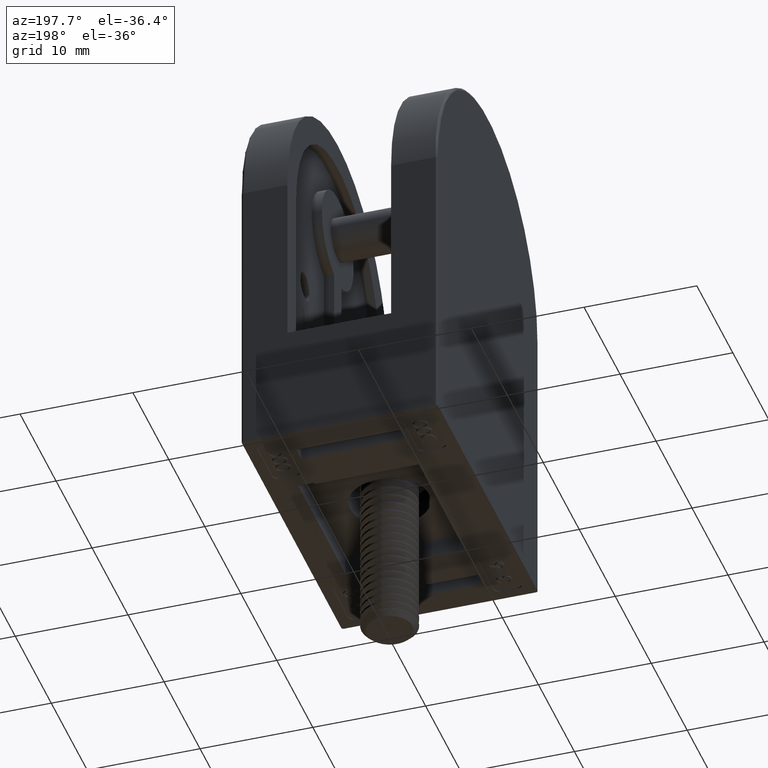
[diagram: clean part render]
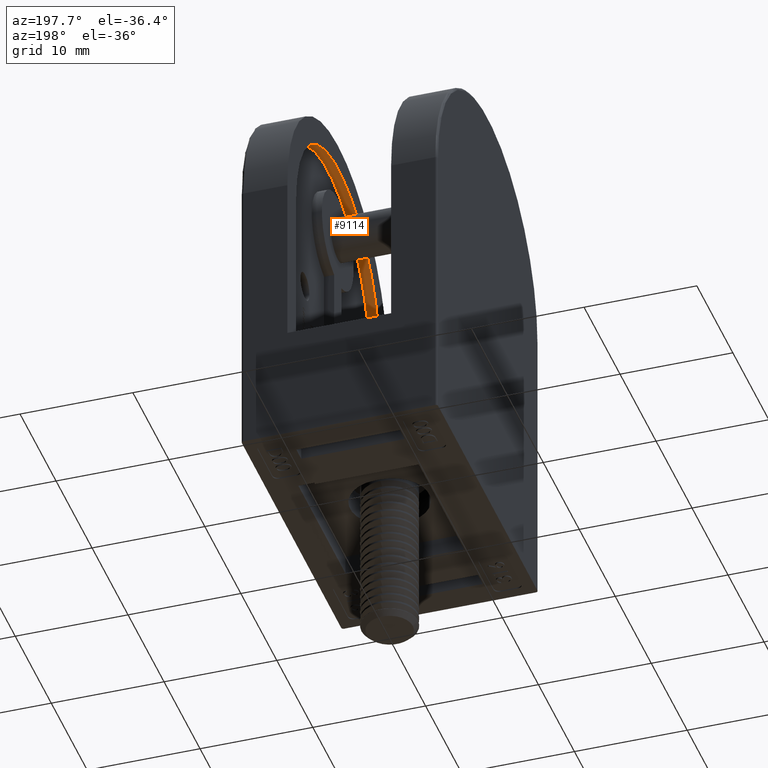
[diagram: same view with one face highlighted and labeled with its STEP entity id]
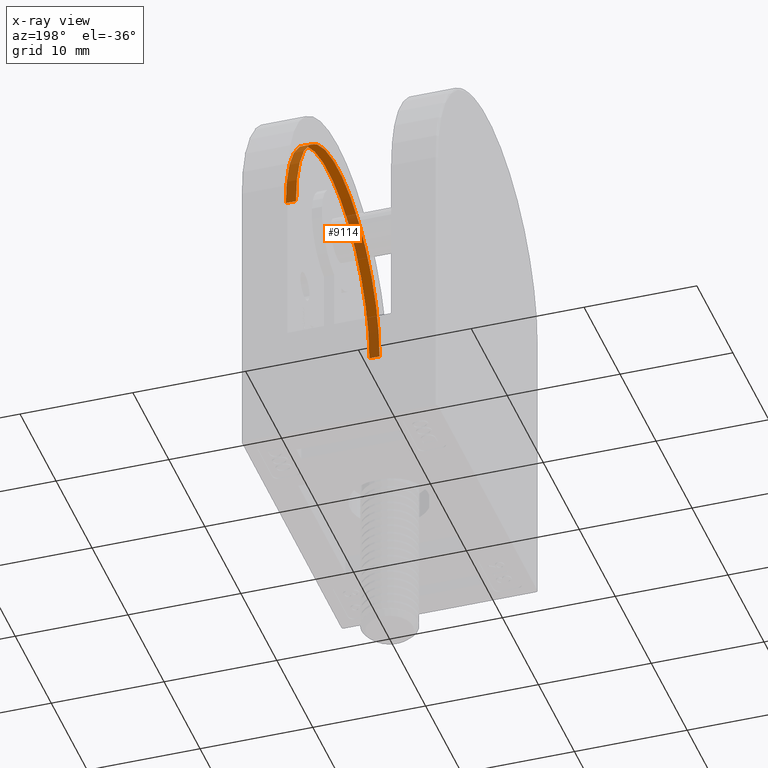
[diagram: x-ray of the same camera — body ghosted, the highlighted face saturated]
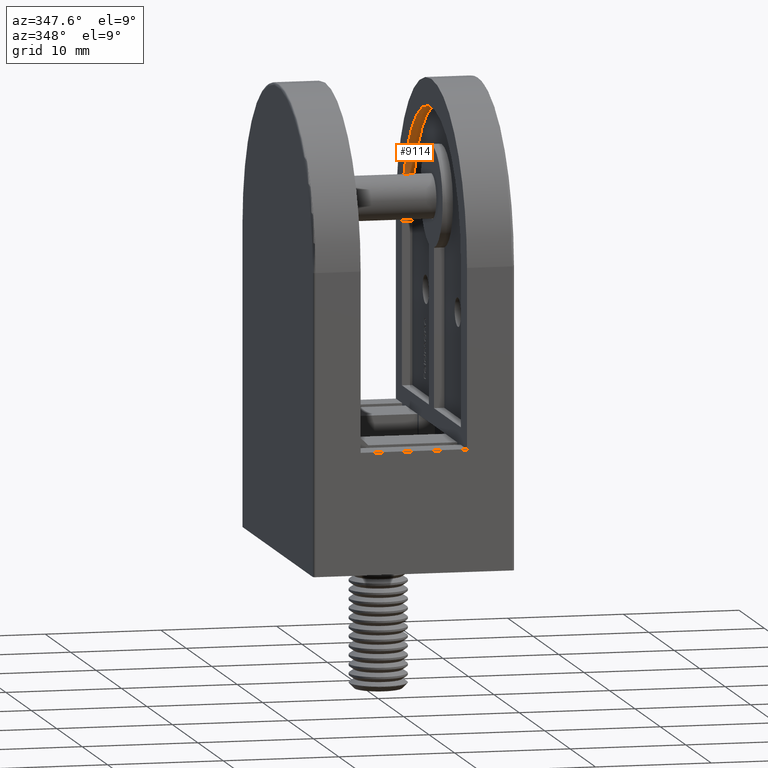
[diagram: same view with one face highlighted and labeled with its STEP entity id]
A machine part, auxiliary view. The second image highlights one B-rep face of the part: STEP entity #9114.
The next image is the same camera in x-ray: the body ghosted, the highlighted face saturated — about 31% of this face is hidden behind the body in this view.
A second angle (auxiliary view) of the same face is appended — the face is thin or edge-on in the first view.
In plain terms, the highlighted cylindrical surface (partial cylindrical patch) has radius 11.6 mm, axis along (-1, 0, 0).
Its self-contained STEP definition (entity closure, byte-faithful):
#1143 = AXIS2_PLACEMENT_3D ( 'NONE', #27488, #8342, #15457 ) ;
#1204 = VECTOR ( 'NONE', #3365, 1000.000000000000000 ) ;
#2016 = EDGE_LOOP ( 'NONE', ( #25953, #44683, #34201, #10985 ) ) ;
#2797 = CARTESIAN_POINT ( 'NONE',  ( 3.199999999999999700, -11.59999999999999800, 25.99999999999999600 ) ) ;
#3062 = VERTEX_POINT ( 'NONE', #2797 ) ;
#3365 = DIRECTION ( 'NONE',  ( 1.000000000000000000, -0.0000000000000000000, -0.0000000000000000000 ) ) ;
#5037 = CARTESIAN_POINT ( 'NONE',  ( 4.099999999999999600, 11.59999999999999800, 25.99999999999999600 ) ) ;
#5111 = CARTESIAN_POINT ( 'NONE',  ( 3.199999999999999700, -11.59999999999999800, 25.99999999999999600 ) ) ;
#8194 = DIRECTION ( 'NONE',  ( 1.000000000000000000, 0.0000000000000000000, 0.0000000000000000000 ) ) ;
#8342 = DIRECTION ( 'NONE',  ( 1.000000000000000000, 0.0000000000000000000, 0.0000000000000000000 ) ) ;
#9114 = ADVANCED_FACE ( 'NONE', ( #10311 ), #19462, .F. ) ;
#10311 = FACE_OUTER_BOUND ( 'NONE', #2016, .T. ) ;
#10985 = ORIENTED_EDGE ( 'NONE', *, *, #44662, .T. ) ;
#12828 = LINE ( 'NONE', #31254, #1204 ) ;
#14032 = CIRCLE ( 'NONE', #1143, 11.59999999999999800 ) ;
#15457 = DIRECTION ( 'NONE',  ( 0.0000000000000000000, 0.0000000000000000000, -1.000000000000000000 ) ) ;
#16247 = EDGE_CURVE ( 'NONE', #41070, #3062, #43034, .T. ) ;
#17555 = VECTOR ( 'NONE', #32821, 1000.000000000000000 ) ;
#19462 = CYLINDRICAL_SURFACE ( 'NONE', #49975, 11.59999999999999800 ) ;
#24059 = VERTEX_POINT ( 'NONE', #5037 ) ;
#25616 = EDGE_CURVE ( 'NONE', #3062, #28090, #50801, .T. ) ;
#25953 = ORIENTED_EDGE ( 'NONE', *, *, #32800, .T. ) ;
#26387 = AXIS2_PLACEMENT_3D ( 'NONE', #43369, #8194, #35599 ) ;
#26437 = DIRECTION ( 'NONE',  ( 1.000000000000000000, -0.0000000000000000000, -0.0000000000000000000 ) ) ;
#27488 = CARTESIAN_POINT ( 'NONE',  ( 4.099999999999999600, 0.0000000000000000000, 25.99999999999999600 ) ) ;
#28090 = VERTEX_POINT ( 'NONE', #38045 ) ;
#31254 = CARTESIAN_POINT ( 'NONE',  ( 3.199999999999999700, 11.59999999999999800, 25.99999999999999600 ) ) ;
#32800 = EDGE_CURVE ( 'NONE', #24059, #28090, #14032, .T. ) ;
#32821 = DIRECTION ( 'NONE',  ( 1.000000000000000000, -0.0000000000000000000, -0.0000000000000000000 ) ) ;
#34201 = ORIENTED_EDGE ( 'NONE', *, *, #16247, .F. ) ;
#35599 = DIRECTION ( 'NONE',  ( 0.0000000000000000000, 0.0000000000000000000, -1.000000000000000000 ) ) ;
#38045 = CARTESIAN_POINT ( 'NONE',  ( 4.099999999999999600, -11.59999999999999800, 25.99999999999999600 ) ) ;
#38286 = CARTESIAN_POINT ( 'NONE',  ( 3.199999999999999700, 0.0000000000000000000, 25.99999999999999600 ) ) ;
#41070 = VERTEX_POINT ( 'NONE', #45956 ) ;
#42275 = DIRECTION ( 'NONE',  ( 0.0000000000000000000, 0.0000000000000000000, -1.000000000000000000 ) ) ;
#43034 = CIRCLE ( 'NONE', #26387, 11.59999999999999800 ) ;
#43369 = CARTESIAN_POINT ( 'NONE',  ( 3.199999999999999700, 0.0000000000000000000, 25.99999999999999600 ) ) ;
#44662 = EDGE_CURVE ( 'NONE', #41070, #24059, #12828, .T. ) ;
#44683 = ORIENTED_EDGE ( 'NONE', *, *, #25616, .F. ) ;
#45956 = CARTESIAN_POINT ( 'NONE',  ( 3.199999999999999700, 11.59999999999999800, 25.99999999999999600 ) ) ;
#49975 = AXIS2_PLACEMENT_3D ( 'NONE', #38286, #26437, #42275 ) ;
#50801 = LINE ( 'NONE', #5111, #17555 ) ;